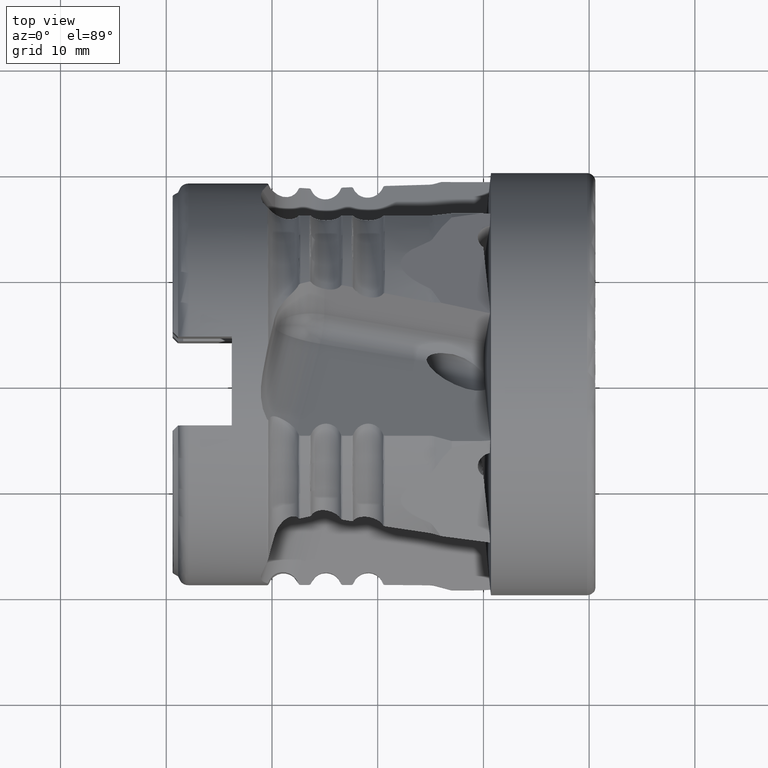
[diagram: clean part render]
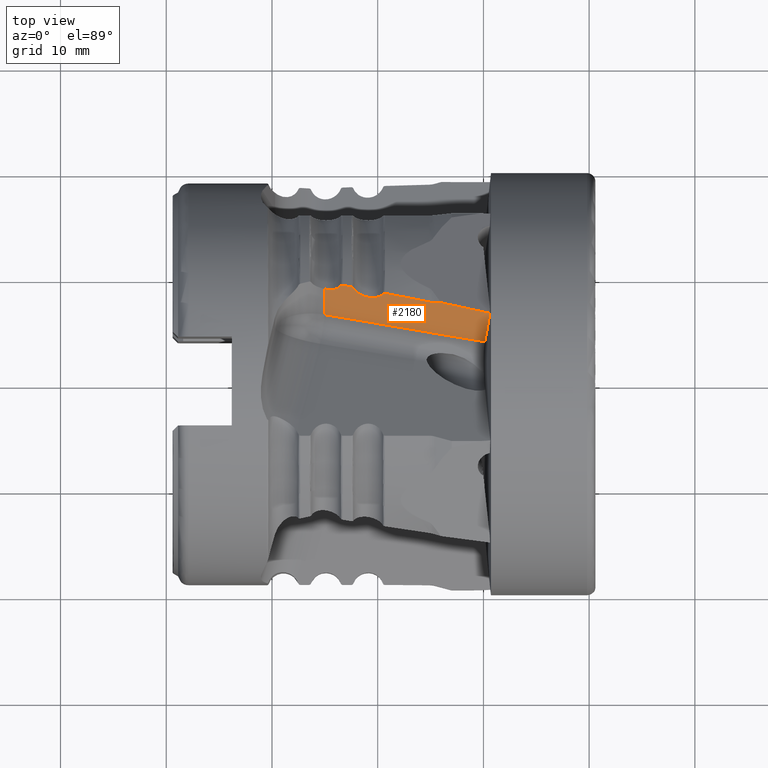
[diagram: same view with one face highlighted and labeled with its STEP entity id]
A machine part, top view. The second image highlights one B-rep face of the part: STEP entity #2180.
In plain terms, the highlighted planar face has unit normal (0.2079, 0.7913, -0.5749).
Its self-contained STEP definition (entity closure, byte-faithful):
#53 =( BOUNDED_CURVE ( )  B_SPLINE_CURVE ( 3, ( #3448, #8397, #5931, #974 ),
 .UNSPECIFIED., .F., .T. ) 
 B_SPLINE_CURVE_WITH_KNOTS ( ( 4, 4 ),
 ( 1.431743916113070100, 1.440987473819894400 ),
 .UNSPECIFIED. ) 
 CURVE ( )  GEOMETRIC_REPRESENTATION_ITEM ( )  RATIONAL_B_SPLINE_CURVE ( ( 1.000000000000000000, 0.9999928797327513100, 0.9999928797327513100, 1.000000000000000000 ) ) 
 REPRESENTATION_ITEM ( '' )  );
#131 = CARTESIAN_POINT ( 'NONE',  ( -19.34920904079318400, 8.327321325827613300, 17.07793293601835700 ) ) ;
#154 = VERTEX_POINT ( 'NONE', #4374 ) ;
#302 = CARTESIAN_POINT ( 'NONE',  ( -14.61169230875398200, 7.432749848904792100, 17.55985509857336500 ) ) ;
#345 = CARTESIAN_POINT ( 'NONE',  ( -23.97179116561052600, 8.740741481542823300, 15.97532577095258200 ) ) ;
#506 = CARTESIAN_POINT ( 'NONE',  ( -19.30940262794131400, 8.319596371244276900, 17.08169535554299400 ) ) ;
#517 = VERTEX_POINT ( 'NONE', #5694 ) ;
#545 = CARTESIAN_POINT ( 'NONE',  ( -23.48221125726537700, 9.062542516790307100, 16.59529016591141500 ) ) ;
#615 = B_SPLINE_CURVE_WITH_KNOTS ( 'NONE', 3,
 ( #6132, #9463, #10334, #5320, #345, #6166, #1205, #7006, #2028, #7840 ),
 .UNSPECIFIED., .F., .F.,
 ( 4, 2, 2, 2, 4 ),
 ( 5.594699827672350900E-007, 0.0004918524692300624500, 0.0009831454684773575400, 0.001474438467724652900, 0.001965731466971948200 ),
 .UNSPECIFIED. ) ;
#705 = FACE_OUTER_BOUND ( 'NONE', #10808, .T. ) ;
#753 = DIRECTION ( 'NONE',  ( 0.2079116908177469400, 0.7913380320007350500, -0.5749407342765943100 ) ) ;
#796 = CARTESIAN_POINT ( 'NONE',  ( -19.62654063356347900, 8.137791385381149200, 16.71677791938967100 ) ) ;
#906 = VERTEX_POINT ( 'NONE', #8408 ) ;
#974 = CARTESIAN_POINT ( 'NONE',  ( -23.30940262794131000, 9.084225391102846100, 16.68762562630293900 ) ) ;
#1122 = CARTESIAN_POINT ( 'NONE',  ( -14.00019748757503100, 7.408598350038033700, 17.74774389506026400 ) ) ;
#1126 = CARTESIAN_POINT ( 'NONE',  ( -15.12933039895903200, 7.495494101969506500, 17.45902540714516600 ) ) ;
#1205 = CARTESIAN_POINT ( 'NONE',  ( -24.40250513967090700, 8.682580231233799900, 15.73951767477627200 ) ) ;
#1228 = B_SPLINE_CURVE_WITH_KNOTS ( 'NONE', 3,
 ( #4267, #131, #6791, #1813, #7612, #2654 ),
 .UNSPECIFIED., .F., .F.,
 ( 4, 2, 4 ),
 ( 9.688754521560503700E-006, 0.0001309986497272394900, 0.0002523085449329184800 ),
 .UNSPECIFIED. ) ;
#1327 = EDGE_CURVE ( 'NONE', #10283, #6901, #1988, .T. ) ;
#1407 = ORIENTED_EDGE ( 'NONE', *, *, #4609, .T. ) ;
#1465 = VERTEX_POINT ( 'NONE', #4803 ) ;
#1548 = EDGE_CURVE ( 'NONE', #154, #3356, #5014, .T. ) ;
#1629 = CARTESIAN_POINT ( 'NONE',  ( -19.93172196915383800, 7.989137139049147700, 16.40181236653599200 ) ) ;
#1673 = ORIENTED_EDGE ( 'NONE', *, *, #5062, .T. ) ;
#1813 = CARTESIAN_POINT ( 'NONE',  ( -19.45616727267561100, 8.313358204175296300, 17.02003581017222800 ) ) ;
#1988 = B_SPLINE_CURVE_WITH_KNOTS ( 'NONE', 3,
 ( #3707, #7844, #8665, #9505 ),
 .UNSPECIFIED., .F., .F.,
 ( 4, 4 ),
 ( 2.075435809074054400E-007, 0.0005312938457920670900 ),
 .UNSPECIFIED. ) ;
#2028 = CARTESIAN_POINT ( 'NONE',  ( -24.88095053417319800, 8.722378976538760000, 15.62127917453373400 ) ) ;
#2180 = ADVANCED_FACE ( 'NONE', ( #705 ), #3241, .F. ) ;
#2214 = ORIENTED_EDGE ( 'NONE', *, *, #1548, .T. ) ;
#2303 = EDGE_CURVE ( 'NONE', #6083, #154, #1228, .T. ) ;
#2335 = CARTESIAN_POINT ( 'NONE',  ( -25.04200685546572600, 8.761505239069856900, 15.61689021348875000 ) ) ;
#2336 = VERTEX_POINT ( 'NONE', #10177 ) ;
#2453 = CARTESIAN_POINT ( 'NONE',  ( -20.61975394349316200, 7.914848087464919000, 16.05075419485264400 ) ) ;
#2559 = CARTESIAN_POINT ( 'NONE',  ( -25.04200685546572600, 6.389785291500603000, 12.35249775723355000 ) ) ;
#2566 = CARTESIAN_POINT ( 'NONE',  ( -9.378339170361091000, 6.409548244608597400, 18.04403883990480000 ) ) ;
#2654 = CARTESIAN_POINT ( 'NONE',  ( -19.49653173053648900, 8.278659050868753900, 16.95767981374487500 ) ) ;
#2756 = CARTESIAN_POINT ( 'NONE',  ( -22.30346826946353600, 8.817274189384697500, 16.68396764007982100 ) ) ;
#2901 = DIRECTION ( 'NONE',  ( 0.9781476007338083500, -0.1682040912007876400, 0.1222074256418630700 ) ) ;
#3210 = CARTESIAN_POINT ( 'NONE',  ( -22.49059737205868000, 8.929586466673667300, 16.77088207382660600 ) ) ;
#3241 = PLANE ( 'NONE',  #9288 ) ;
#3316 = CARTESIAN_POINT ( 'NONE',  ( -21.51853008852992800, 8.151036003441721100, 16.05082100631319300 ) ) ;
#3356 = VERTEX_POINT ( 'NONE', #2756 ) ;
#3417 = EDGE_CURVE ( 'NONE', #9592, #10283, #10147, .T. ) ;
#3420 = DIRECTION ( 'NONE',  ( 5.754425876723396500E-017, -0.5877852522924684700, -0.8090169943749508900 ) ) ;
#3448 = CARTESIAN_POINT ( 'NONE',  ( -22.49059737205868000, 8.929586466673667300, 16.77088207382660600 ) ) ;
#3707 = CARTESIAN_POINT ( 'NONE',  ( -14.61169230875398200, 7.432749848904792100, 17.55985509857336500 ) ) ;
#3719 = CARTESIAN_POINT ( 'NONE',  ( -28.89590840235693000, 7.052509410831706100, 11.87100050020461100 ) ) ;
#3801 = ORIENTED_EDGE ( 'NONE', *, *, #7418, .T. ) ;
#3850 = CARTESIAN_POINT ( 'NONE',  ( -23.30940262794131000, 9.084225391102846100, 16.68762562630293900 ) ) ;
#3858 =( BOUNDED_CURVE ( )  B_SPLINE_CURVE ( 3, ( #9616, #10456, #5481, #506 ),
 .UNSPECIFIED., .F., .T. ) 
 B_SPLINE_CURVE_WITH_KNOTS ( ( 4, 4 ),
 ( 1.348001114461715000, 1.395709785986951400 ),
 .UNSPECIFIED. ) 
 CURVE ( )  GEOMETRIC_REPRESENTATION_ITEM ( )  RATIONAL_B_SPLINE_CURVE ( ( 1.000000000000000000, 0.9998103325492258000, 0.9998103325492258000, 1.000000000000000000 ) ) 
 REPRESENTATION_ITEM ( '' )  );
#3926 = EDGE_CURVE ( 'NONE', #517, #8365, #615, .T. ) ;
#3931 = ORIENTED_EDGE ( 'NONE', *, *, #1327, .T. ) ;
#4103 = B_SPLINE_CURVE_WITH_KNOTS ( 'NONE', 3,
 ( #7337, #4810, #8157, #3210 ),
 .UNSPECIFIED., .F., .F.,
 ( 4, 4 ),
 ( 3.618807436983961900E-005, 0.0002839918985799137500 ),
 .UNSPECIFIED. ) ;
#4117 = CARTESIAN_POINT ( 'NONE',  ( -21.99263276458538700, 8.455751563310926100, 16.29877964616563800 ) ) ;
#4197 = CARTESIAN_POINT ( 'NONE',  ( -9.702481037949688400, 4.656560819484401000, 15.51404154426144900 ) ) ;
#4267 = CARTESIAN_POINT ( 'NONE',  ( -19.30940262794131400, 8.319596371244276900, 17.08169535554299400 ) ) ;
#4374 = CARTESIAN_POINT ( 'NONE',  ( -19.49653173053648900, 8.278659050868753900, 16.95767981374487500 ) ) ;
#4398 = CARTESIAN_POINT ( 'NONE',  ( -14.20404563629873700, 7.416696826133280000, 17.68517434833809800 ) ) ;
#4609 = EDGE_CURVE ( 'NONE', #8365, #906, #8446, .T. ) ;
#4770 = ORIENTED_EDGE ( 'NONE', *, *, #5777, .F. ) ;
#4779 = ORIENTED_EDGE ( 'NONE', *, *, #6043, .T. ) ;
#4803 = CARTESIAN_POINT ( 'NONE',  ( -9.378339170361091000, 6.409548244608597400, 18.04403883990480000 ) ) ;
#4810 = CARTESIAN_POINT ( 'NONE',  ( -22.33200183575030800, 8.867605464966994000, 16.74292430906291100 ) ) ;
#4866 = EDGE_CURVE ( 'NONE', #5553, #517, #7372, .T. ) ;
#4903 = CARTESIAN_POINT ( 'NONE',  ( -19.49653173053648900, 8.278659050868753900, 16.95767981374487500 ) ) ;
#4938 = CARTESIAN_POINT ( 'NONE',  ( -22.24978052499059100, 8.722572649615120400, 16.57303686656386800 ) ) ;
#5014 = B_SPLINE_CURVE_WITH_KNOTS ( 'NONE', 3,
 ( #4903, #9909, #796, #6597, #1629, #7437, #2453, #8262, #3316, #9082, #4117, #9945, #4938, #10805 ),
 .UNSPECIFIED., .F., .F.,
 ( 4, 2, 2, 2, 2, 2, 4 ),
 ( 5.611554847233501600E-007, 0.0004605272705808013800, 0.0009204933856768794100, 0.001840425615869044900, 0.002760357846061210000, 0.003220323961157291500, 0.003680290076253372700 ),
 .UNSPECIFIED. ) ;
#5062 = EDGE_CURVE ( 'NONE', #9845, #1465, #5428, .T. ) ;
#5085 = CARTESIAN_POINT ( 'NONE',  ( -9.861032721469719300, 3.779236581023963600, 14.24917241682436100 ) ) ;
#5277 = CARTESIAN_POINT ( 'NONE',  ( -14.40787739133842700, 7.424747674920742400, 17.62254517658085400 ) ) ;
#5320 = CARTESIAN_POINT ( 'NONE',  ( -23.84848241106644600, 8.781125794897473500, 16.07550126952136100 ) ) ;
#5428 = B_SPLINE_CURVE_WITH_KNOTS ( 'NONE', 3,
 ( #10023, #4197, #7547, #2566 ),
 .UNSPECIFIED., .F., .F.,
 ( 4, 4 ),
 ( 0.0009502489986550874400, 0.005592720453371054900 ),
 .UNSPECIFIED. ) ;
#5481 = CARTESIAN_POINT ( 'NONE',  ( -17.90947578823313100, 8.047922274485511500, 17.21401353488705500 ) ) ;
#5514 = CARTESIAN_POINT ( 'NONE',  ( -23.45602755394359200, 9.077419689038585200, 16.62523546150758900 ) ) ;
#5553 = VERTEX_POINT ( 'NONE', #10222 ) ;
#5694 = CARTESIAN_POINT ( 'NONE',  ( -23.49653173053663800, 9.042736289365183900, 16.56285062261386200 ) ) ;
#5777 = EDGE_CURVE ( 'NONE', #9592, #1465, #8195, .T. ) ;
#5796 = ORIENTED_EDGE ( 'NONE', *, *, #3926, .T. ) ;
#5931 = CARTESIAN_POINT ( 'NONE',  ( -23.03629790785521800, 9.032807531225675000, 16.71561591316053000 ) ) ;
#6043 = EDGE_CURVE ( 'NONE', #906, #9845, #8837, .T. ) ;
#6083 = VERTEX_POINT ( 'NONE', #8716 ) ;
#6132 = CARTESIAN_POINT ( 'NONE',  ( -23.49653173053663800, 9.042736289365183900, 16.56285062261386200 ) ) ;
#6166 = CARTESIAN_POINT ( 'NONE',  ( -24.25250714278769200, 8.690814072054314100, 15.80509328334646000 ) ) ;
#6359 = CARTESIAN_POINT ( 'NONE',  ( -23.49653173053663800, 9.042736289365183900, 16.56285062261386200 ) ) ;
#6573 = DIRECTION ( 'NONE',  ( 0.0000000000000000000, 0.5877852522924684700, 0.8090169943749507800 ) ) ;
#6597 = CARTESIAN_POINT ( 'NONE',  ( -19.81870871027906500, 8.029771556015047600, 16.49860901699561600 ) ) ;
#6638 = VECTOR ( 'NONE', #2901, 999.9999999999998900 ) ;
#6791 = CARTESIAN_POINT ( 'NONE',  ( -19.38897764833660300, 8.327847194937829700, 17.06427549666692700 ) ) ;
#6901 = VERTEX_POINT ( 'NONE', #1126 ) ;
#6992 = CARTESIAN_POINT ( 'NONE',  ( -14.00019748757503100, 7.408598350038033700, 17.74774389506026400 ) ) ;
#7006 = CARTESIAN_POINT ( 'NONE',  ( -24.72082696934369000, 8.698572333578509200, 15.64641647696011100 ) ) ;
#7108 = ORIENTED_EDGE ( 'NONE', *, *, #10024, .T. ) ;
#7333 = CARTESIAN_POINT ( 'NONE',  ( -28.89590840235693000, 7.052509410831707000, 11.87100050020461100 ) ) ;
#7337 = CARTESIAN_POINT ( 'NONE',  ( -22.30346826946353600, 8.817274189384697500, 16.68396764007982100 ) ) ;
#7372 = B_SPLINE_CURVE_WITH_KNOTS ( 'NONE', 3,
 ( #3850, #9652, #10519, #5514, #545, #6359 ),
 .UNSPECIFIED., .F., .F.,
 ( 4, 2, 4 ),
 ( 9.682604923266863300E-006, 0.0001311015959565870300, 0.0002525205869899072000 ),
 .UNSPECIFIED. ) ;
#7418 = EDGE_CURVE ( 'NONE', #3356, #2336, #4103, .T. ) ;
#7427 = DIRECTION ( 'NONE',  ( 0.9755127854024281400, -0.2108645666342148800, 0.06253750918097890400 ) ) ;
#7437 = CARTESIAN_POINT ( 'NONE',  ( -20.31477297584578100, 7.908749341624041300, 16.15264806951976700 ) ) ;
#7547 = CARTESIAN_POINT ( 'NONE',  ( -9.541039432678850600, 5.533203050508262800, 16.77901703065212800 ) ) ;
#7612 = CARTESIAN_POINT ( 'NONE',  ( -19.48224691083234500, 8.298489328680391400, 16.99013956641605500 ) ) ;
#7840 = CARTESIAN_POINT ( 'NONE',  ( -25.04200685546572600, 8.761505239069856900, 15.61689021348875000 ) ) ;
#7844 = CARTESIAN_POINT ( 'NONE',  ( -14.78228740248381700, 7.439447747359649200, 17.50738288569609900 ) ) ;
#7993 = ORIENTED_EDGE ( 'NONE', *, *, #2303, .T. ) ;
#8111 = EDGE_CURVE ( 'NONE', #2336, #5553, #53, .T. ) ;
#8119 = ORIENTED_EDGE ( 'NONE', *, *, #8111, .T. ) ;
#8157 = CARTESIAN_POINT ( 'NONE',  ( -22.40868123385573400, 8.914067651613077500, 16.77914500241520600 ) ) ;
#8195 = LINE ( 'NONE', #10792, #10434 ) ;
#8262 = CARTESIAN_POINT ( 'NONE',  ( -21.22142341698766900, 8.035870519886849200, 15.99974986988712500 ) ) ;
#8365 = VERTEX_POINT ( 'NONE', #2335 ) ;
#8397 = CARTESIAN_POINT ( 'NONE',  ( -22.76336087917641400, 8.981260856056511700, 16.74336825993921400 ) ) ;
#8408 = CARTESIAN_POINT ( 'NONE',  ( -25.04200685546572600, 6.389785291500603000, 12.35249775723355000 ) ) ;
#8446 = LINE ( 'NONE', #2559, #10694 ) ;
#8665 = CARTESIAN_POINT ( 'NONE',  ( -14.95485961778599900, 7.460553315273323000, 17.47402615629562200 ) ) ;
#8716 = CARTESIAN_POINT ( 'NONE',  ( -19.30940262794131400, 8.319596371244276900, 17.08169535554299400 ) ) ;
#8735 = ORIENTED_EDGE ( 'NONE', *, *, #3417, .T. ) ;
#8837 = LINE ( 'NONE', #3719, #6638 ) ;
#9082 = CARTESIAN_POINT ( 'NONE',  ( -21.88237164501025900, 8.372394778003485500, 16.22392181113863800 ) ) ;
#9288 = AXIS2_PLACEMENT_3D ( 'NONE', #7333, #753, #6573 ) ;
#9421 = CARTESIAN_POINT ( 'NONE',  ( -14.61169230875398200, 7.432749848904792100, 17.55985509857336500 ) ) ;
#9463 = CARTESIAN_POINT ( 'NONE',  ( -23.55510192638892900, 8.961729565814085400, 16.43017411337172400 ) ) ;
#9474 = ORIENTED_EDGE ( 'NONE', *, *, #4866, .T. ) ;
#9505 = CARTESIAN_POINT ( 'NONE',  ( -15.12933039895903200, 7.495494101969506500, 17.45902540714516600 ) ) ;
#9592 = VERTEX_POINT ( 'NONE', #6992 ) ;
#9616 = CARTESIAN_POINT ( 'NONE',  ( -15.12933039895903200, 7.495494101969506500, 17.45902540714516600 ) ) ;
#9652 = CARTESIAN_POINT ( 'NONE',  ( -23.34926081834219900, 9.091729555982691800, 16.68354059187879900 ) ) ;
#9845 = VERTEX_POINT ( 'NONE', #5085 ) ;
#9909 = CARTESIAN_POINT ( 'NONE',  ( -19.55120267030151000, 8.202764503634529800, 16.83344967154957000 ) ) ;
#9945 = CARTESIAN_POINT ( 'NONE',  ( -22.17522957381277500, 8.630028071793846700, 16.47261950816149700 ) ) ;
#10023 = CARTESIAN_POINT ( 'NONE',  ( -9.861032721469719300, 3.779236581023963600, 14.24917241682436100 ) ) ;
#10024 = EDGE_CURVE ( 'NONE', #6901, #6083, #3858, .T. ) ;
#10147 = B_SPLINE_CURVE_WITH_KNOTS ( 'NONE', 3,
 ( #1122, #4398, #5277, #302 ),
 .UNSPECIFIED., .F., .F.,
 ( 4, 4 ),
 ( 0.001047080626284322300, 0.001687245656357327800 ),
 .UNSPECIFIED. ) ;
#10177 = CARTESIAN_POINT ( 'NONE',  ( -22.49059737205868000, 8.929586466673667300, 16.77088207382660600 ) ) ;
#10222 = CARTESIAN_POINT ( 'NONE',  ( -23.30940262794131000, 9.084225391102846100, 16.68762562630293900 ) ) ;
#10283 = VERTEX_POINT ( 'NONE', #9421 ) ;
#10334 = CARTESIAN_POINT ( 'NONE',  ( -23.63724467996661000, 8.893165295180256900, 16.30609879652457600 ) ) ;
#10434 = VECTOR ( 'NONE', #7427, 1000.000000000000000 ) ;
#10456 = CARTESIAN_POINT ( 'NONE',  ( -16.51585405389069200, 7.773169406384507600, 17.33981407902295400 ) ) ;
#10519 = CARTESIAN_POINT ( 'NONE',  ( -23.38897263441440100, 9.092053389732370800, 16.66962561180191900 ) ) ;
#10694 = VECTOR ( 'NONE', #3420, 1000.000000000000100 ) ;
#10792 = CARTESIAN_POINT ( 'NONE',  ( -0.2360214880032236500, 4.433366194542037100, 18.63012831464194700 ) ) ;
#10805 = CARTESIAN_POINT ( 'NONE',  ( -22.30346826946353600, 8.817274189384697500, 16.68396764007982100 ) ) ;
#10808 = EDGE_LOOP ( 'NONE', ( #4779, #1673, #4770, #8735, #3931, #7108, #7993, #2214, #3801, #8119, #9474, #5796, #1407 ) ) ;